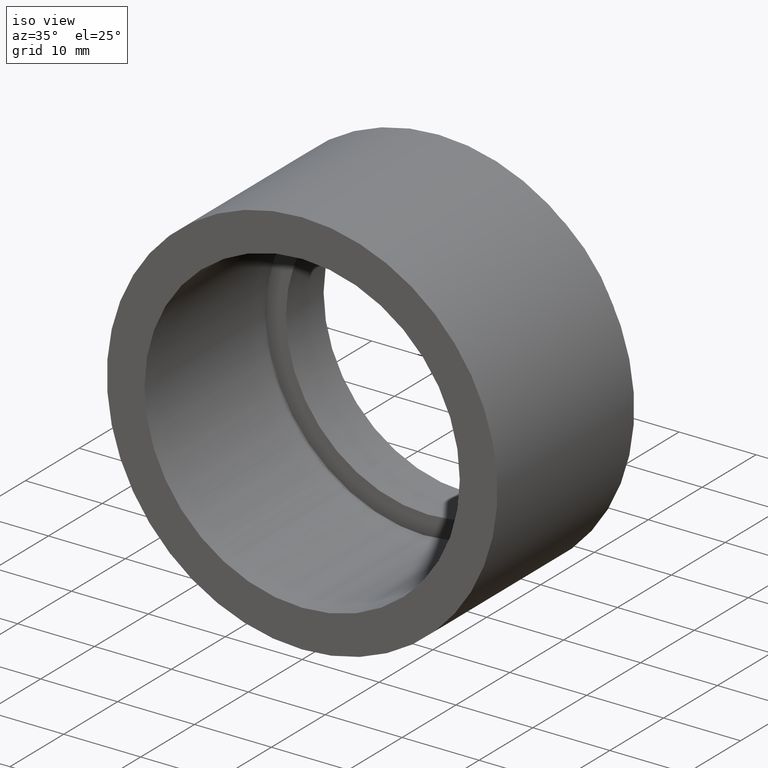
[diagram: clean part render]
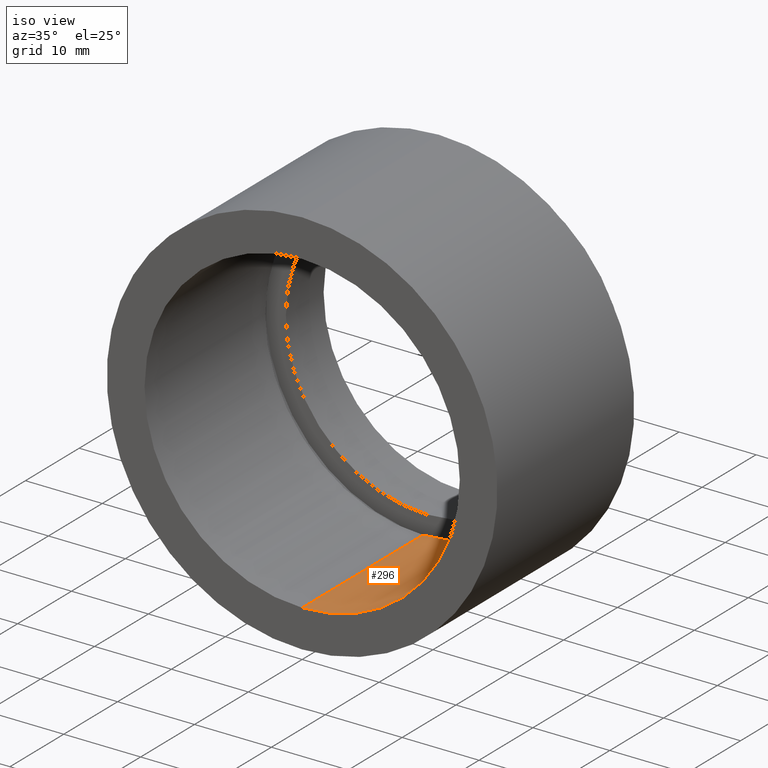
[diagram: same view with one face highlighted and labeled with its STEP entity id]
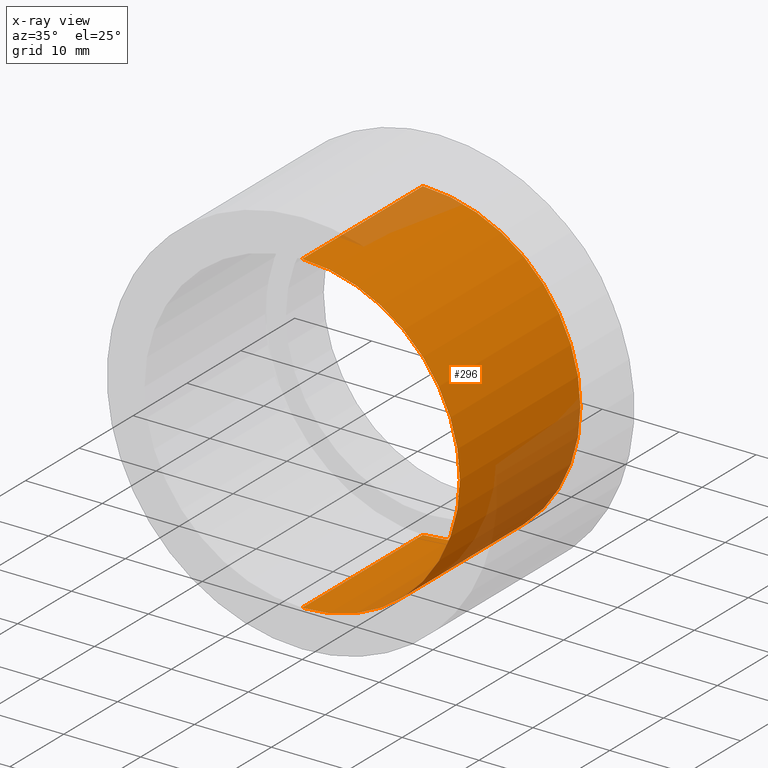
[diagram: x-ray of the same camera — body ghosted, the highlighted face saturated]
A machine part, iso view. The second image highlights one B-rep face of the part: STEP entity #296.
The next image is the same camera in x-ray: the body ghosted, the highlighted face saturated — about 18% of this face is hidden behind the body in this view.
In plain terms, the highlighted cylindrical surface (partial cylindrical patch) has radius 20.5 mm, axis along (-0, 1, -0).
Its self-contained STEP definition (entity closure, byte-faithful):
#13 = FACE_OUTER_BOUND ( 'NONE', #162, .T. ) ;
#40 = DIRECTION ( 'NONE',  ( 0.0000000000000000000, 0.0000000000000000000, 1.000000000000000000 ) ) ;
#46 = CIRCLE ( 'NONE', #247, 20.50000000000002100 ) ;
#56 = EDGE_CURVE ( 'NONE', #103, #614, #60, .T. ) ;
#60 = LINE ( 'NONE', #295, #552 ) ;
#77 = ORIENTED_EDGE ( 'NONE', *, *, #56, .F. ) ;
#95 = LINE ( 'NONE', #515, #132 ) ;
#96 = CARTESIAN_POINT ( 'NONE',  ( 0.0000000000000000000, 22.39999999999997700, 20.50000000000002100 ) ) ;
#103 = VERTEX_POINT ( 'NONE', #541 ) ;
#132 = VECTOR ( 'NONE', #280, 1000.000000000000000 ) ;
#139 = CYLINDRICAL_SURFACE ( 'NONE', #449, 20.50000000000002100 ) ;
#142 = DIRECTION ( 'NONE',  ( -0.0000000000000000000, 1.000000000000000000, -0.0000000000000000000 ) ) ;
#146 = EDGE_CURVE ( 'NONE', #311, #103, #46, .T. ) ;
#162 = EDGE_LOOP ( 'NONE', ( #77, #475, #204, #385 ) ) ;
#204 = ORIENTED_EDGE ( 'NONE', *, *, #425, .T. ) ;
#220 = DIRECTION ( 'NONE',  ( 0.0000000000000000000, 0.0000000000000000000, 1.000000000000000000 ) ) ;
#225 = CARTESIAN_POINT ( 'NONE',  ( 0.0000000000000000000, 22.39999999999997700, 0.0000000000000000000 ) ) ;
#229 = CARTESIAN_POINT ( 'NONE',  ( 0.0000000000000000000, -2.775557561562891400E-014, 20.50000000000002100 ) ) ;
#247 = AXIS2_PLACEMENT_3D ( 'NONE', #551, #403, #220 ) ;
#263 = EDGE_CURVE ( 'NONE', #442, #614, #542, .T. ) ;
#280 = DIRECTION ( 'NONE',  ( -0.0000000000000000000, 1.000000000000000000, -0.0000000000000000000 ) ) ;
#295 = CARTESIAN_POINT ( 'NONE',  ( 2.510525938252076500E-015, 161.3761669434274500, -20.50000000000002100 ) ) ;
#296 = ADVANCED_FACE ( 'NONE', ( #13 ), #139, .F. ) ;
#311 = VERTEX_POINT ( 'NONE', #229 ) ;
#336 = AXIS2_PLACEMENT_3D ( 'NONE', #225, #558, #40 ) ;
#347 = DIRECTION ( 'NONE',  ( -0.0000000000000000000, 1.000000000000000000, -0.0000000000000000000 ) ) ;
#367 = CARTESIAN_POINT ( 'NONE',  ( 0.0000000000000000000, 161.3761669434274500, 0.0000000000000000000 ) ) ;
#373 = DIRECTION ( 'NONE',  ( 0.0000000000000000000, 0.0000000000000000000, 1.000000000000000000 ) ) ;
#385 = ORIENTED_EDGE ( 'NONE', *, *, #263, .T. ) ;
#403 = DIRECTION ( 'NONE',  ( -0.0000000000000000000, 1.000000000000000000, -0.0000000000000000000 ) ) ;
#425 = EDGE_CURVE ( 'NONE', #311, #442, #95, .T. ) ;
#442 = VERTEX_POINT ( 'NONE', #96 ) ;
#449 = AXIS2_PLACEMENT_3D ( 'NONE', #367, #142, #373 ) ;
#475 = ORIENTED_EDGE ( 'NONE', *, *, #146, .F. ) ;
#477 = CARTESIAN_POINT ( 'NONE',  ( 2.510525938252076500E-015, 22.39999999999997700, -20.50000000000002100 ) ) ;
#515 = CARTESIAN_POINT ( 'NONE',  ( 0.0000000000000000000, 161.3761669434274500, 20.50000000000002100 ) ) ;
#541 = CARTESIAN_POINT ( 'NONE',  ( 2.510525938252076500E-015, -2.775557561562891400E-014, -20.50000000000002100 ) ) ;
#542 = CIRCLE ( 'NONE', #336, 20.50000000000002100 ) ;
#551 = CARTESIAN_POINT ( 'NONE',  ( 0.0000000000000000000, -2.775557561562891400E-014, 0.0000000000000000000 ) ) ;
#552 = VECTOR ( 'NONE', #347, 1000.000000000000000 ) ;
#558 = DIRECTION ( 'NONE',  ( -0.0000000000000000000, 1.000000000000000000, -0.0000000000000000000 ) ) ;
#614 = VERTEX_POINT ( 'NONE', #477 ) ;